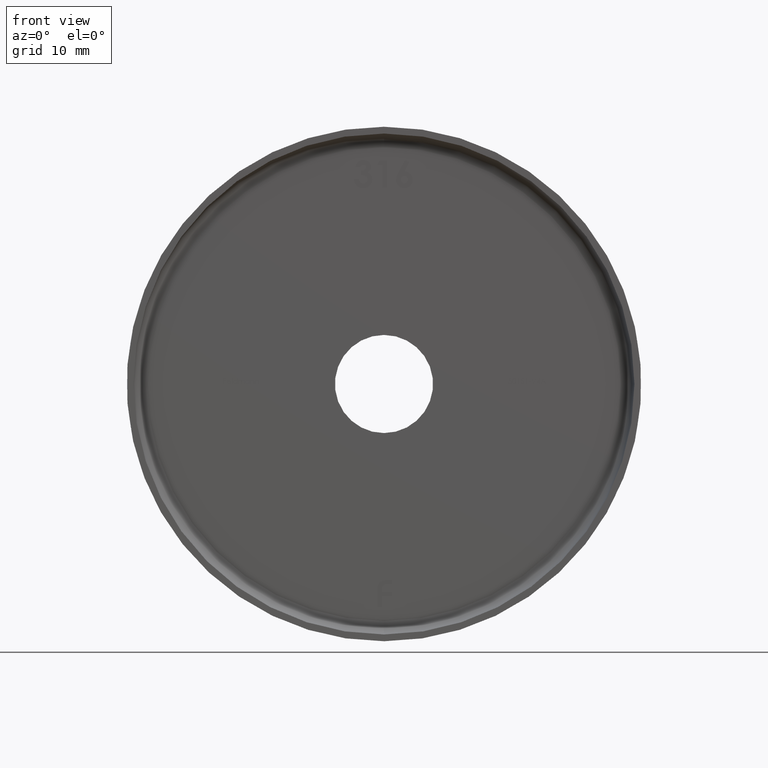
[diagram: clean part render]
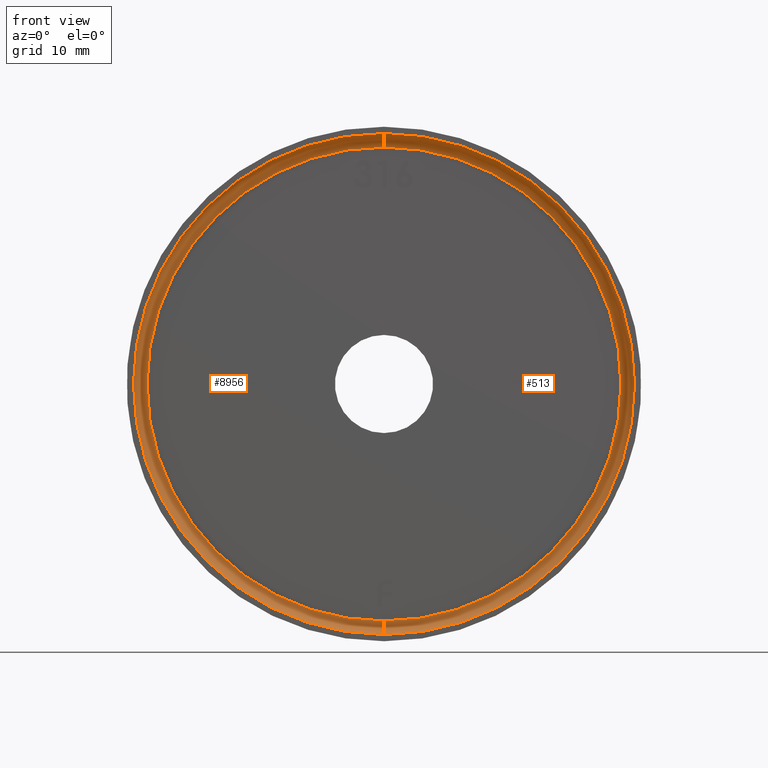
[diagram: same view with one multi-face feature highlighted, each face labeled with its STEP entity id]
A machine part, front view. The highlighted faces form ONE feature: a constant-radius fillet chain: 2 tangent blend faces with common blend radius 2 mm. The faces share edges in the B-rep.
Their STEP definitions:
[1] entity #513 (Torus):
#513 = ADVANCED_FACE ( 'NONE', ( #9842 ), #8202, .F. ) ;
#535 = AXIS2_PLACEMENT_3D ( 'NONE', #7032, #6118, #3935 ) ;
#764 = DIRECTION ( 'NONE',  ( -0.000000000000000000, -1.000000000000000000, -0.000000000000000000 ) ) ;
#1452 = CIRCLE ( 'NONE', #5672, 37.00000000000000711 ) ;
#1592 = CARTESIAN_POINT ( 'NONE',  ( 0.000000000000000000, 9.000000000000001776, -37.00000000000000711 ) ) ;
#1963 = AXIS2_PLACEMENT_3D ( 'NONE', #3065, #5190, #11353 ) ;
#1986 = EDGE_CURVE ( 'NONE', #5102, #10431, #5441, .T. ) ;
#2286 = ORIENTED_EDGE ( 'NONE', *, *, #4790, .F. ) ;
#3065 = CARTESIAN_POINT ( 'NONE',  ( 0.000000000000000000, 11.00000000000000178, 0.000000000000000000 ) ) ;
#3594 = VERTEX_POINT ( 'NONE', #9023 ) ;
#3935 = DIRECTION ( 'NONE',  ( 0.000000000000000000, 0.000000000000000000, 1.000000000000000000 ) ) ;
#4250 = ORIENTED_EDGE ( 'NONE', *, *, #10779, .T. ) ;
#4524 = AXIS2_PLACEMENT_3D ( 'NONE', #13513, #7199, #8295 ) ;
#4790 = EDGE_CURVE ( 'NONE', #3594, #5102, #8316, .T. ) ;
#5102 = VERTEX_POINT ( 'NONE', #12064 ) ;
#5190 = DIRECTION ( 'NONE',  ( -0.000000000000000000, -1.000000000000000000, -0.000000000000000000 ) ) ;
#5232 = DIRECTION ( 'NONE',  ( 1.000000000000000000, 0.000000000000000000, -1.224646799147353207E-16 ) ) ;
#5441 = CIRCLE ( 'NONE', #9849, 2.000000000000001776 ) ;
#5672 = AXIS2_PLACEMENT_3D ( 'NONE', #11222, #764, #12265 ) ;
#5836 = EDGE_LOOP ( 'NONE', ( #12804, #2286, #4250, #7564 ) ) ;
#5983 = EDGE_CURVE ( 'NONE', #6753, #10431, #1452, .T. ) ;
#6118 = DIRECTION ( 'NONE',  ( -1.000000000000000000, 0.000000000000000000, 0.000000000000000000 ) ) ;
#6353 = DIRECTION ( 'NONE',  ( -1.224646799147353454E-16, 0.000000000000000000, -1.000000000000000000 ) ) ;
#6753 = VERTEX_POINT ( 'NONE', #1592 ) ;
#7032 = CARTESIAN_POINT ( 'NONE',  ( 0.000000000000000000, 9.000000000000001776, -35.00000000000000000 ) ) ;
#7199 = DIRECTION ( 'NONE',  ( -0.000000000000000000, -1.000000000000000000, -0.000000000000000000 ) ) ;
#7564 = ORIENTED_EDGE ( 'NONE', *, *, #5983, .T. ) ;
#8202 = TOROIDAL_SURFACE ( 'NONE', #4524, 35.00000000000000000, 2.000000000000000000 ) ;
#8295 = DIRECTION ( 'NONE',  ( 0.000000000000000000, 0.000000000000000000, -1.000000000000000000 ) ) ;
#8316 = CIRCLE ( 'NONE', #1963, 35.00000000000000000 ) ;
#8906 = CARTESIAN_POINT ( 'NONE',  ( 4.531193156845207581E-15, 9.000000000000001776, 37.00000000000000711 ) ) ;
#9023 = CARTESIAN_POINT ( 'NONE',  ( 0.000000000000000000, 11.00000000000000178, -35.00000000000000000 ) ) ;
#9842 = FACE_OUTER_BOUND ( 'NONE', #5836, .T. ) ;
#9849 = AXIS2_PLACEMENT_3D ( 'NONE', #12518, #5232, #6353 ) ;
#10431 = VERTEX_POINT ( 'NONE', #8906 ) ;
#10779 = EDGE_CURVE ( 'NONE', #3594, #6753, #13309, .T. ) ;
#11222 = CARTESIAN_POINT ( 'NONE',  ( 0.000000000000000000, 9.000000000000001776, 0.000000000000000000 ) ) ;
#11353 = DIRECTION ( 'NONE',  ( 0.000000000000000000, 0.000000000000000000, -1.000000000000000000 ) ) ;
#12064 = CARTESIAN_POINT ( 'NONE',  ( 4.408728476930472433E-15, 11.00000000000000178, 35.00000000000000000 ) ) ;
#12265 = DIRECTION ( 'NONE',  ( 0.000000000000000000, 0.000000000000000000, -1.000000000000000000 ) ) ;
#12518 = CARTESIAN_POINT ( 'NONE',  ( 4.286263797015736496E-15, 9.000000000000001776, 35.00000000000000000 ) ) ;
#12804 = ORIENTED_EDGE ( 'NONE', *, *, #1986, .F. ) ;
#13309 = CIRCLE ( 'NONE', #535, 2.000000000000001776 ) ;
#13513 = CARTESIAN_POINT ( 'NONE',  ( 0.000000000000000000, 9.000000000000001776, 0.000000000000000000 ) ) ;
[2] entity #8956 (Torus):
#208 = DIRECTION ( 'NONE',  ( -0.000000000000000000, -1.000000000000000000, -0.000000000000000000 ) ) ;
#269 = DIRECTION ( 'NONE',  ( -0.000000000000000000, -1.000000000000000000, -0.000000000000000000 ) ) ;
#535 = AXIS2_PLACEMENT_3D ( 'NONE', #7032, #6118, #3935 ) ;
#552 = CIRCLE ( 'NONE', #13307, 35.00000000000000000 ) ;
#1278 = CARTESIAN_POINT ( 'NONE',  ( 0.000000000000000000, 9.000000000000001776, 0.000000000000000000 ) ) ;
#1592 = CARTESIAN_POINT ( 'NONE',  ( 0.000000000000000000, 9.000000000000001776, -37.00000000000000711 ) ) ;
#1986 = EDGE_CURVE ( 'NONE', #5102, #10431, #5441, .T. ) ;
#1991 = CARTESIAN_POINT ( 'NONE',  ( 0.000000000000000000, 9.000000000000001776, 0.000000000000000000 ) ) ;
#3066 = CIRCLE ( 'NONE', #9950, 37.00000000000000711 ) ;
#3196 = AXIS2_PLACEMENT_3D ( 'NONE', #1991, #12636, #11541 ) ;
#3334 = DIRECTION ( 'NONE',  ( 0.000000000000000000, 0.000000000000000000, -1.000000000000000000 ) ) ;
#3594 = VERTEX_POINT ( 'NONE', #9023 ) ;
#3935 = DIRECTION ( 'NONE',  ( 0.000000000000000000, 0.000000000000000000, 1.000000000000000000 ) ) ;
#5102 = VERTEX_POINT ( 'NONE', #12064 ) ;
#5144 = ORIENTED_EDGE ( 'NONE', *, *, #12736, .F. ) ;
#5232 = DIRECTION ( 'NONE',  ( 1.000000000000000000, 0.000000000000000000, -1.224646799147353207E-16 ) ) ;
#5441 = CIRCLE ( 'NONE', #9849, 2.000000000000001776 ) ;
#5891 = EDGE_CURVE ( 'NONE', #10431, #6753, #3066, .T. ) ;
#5968 = FACE_OUTER_BOUND ( 'NONE', #11052, .T. ) ;
#6118 = DIRECTION ( 'NONE',  ( -1.000000000000000000, 0.000000000000000000, 0.000000000000000000 ) ) ;
#6213 = ORIENTED_EDGE ( 'NONE', *, *, #1986, .T. ) ;
#6353 = DIRECTION ( 'NONE',  ( -1.224646799147353454E-16, 0.000000000000000000, -1.000000000000000000 ) ) ;
#6623 = ORIENTED_EDGE ( 'NONE', *, *, #10779, .F. ) ;
#6753 = VERTEX_POINT ( 'NONE', #1592 ) ;
#7032 = CARTESIAN_POINT ( 'NONE',  ( 0.000000000000000000, 9.000000000000001776, -35.00000000000000000 ) ) ;
#8906 = CARTESIAN_POINT ( 'NONE',  ( 4.531193156845207581E-15, 9.000000000000001776, 37.00000000000000711 ) ) ;
#8956 = ADVANCED_FACE ( 'NONE', ( #5968 ), #10056, .F. ) ;
#9023 = CARTESIAN_POINT ( 'NONE',  ( 0.000000000000000000, 11.00000000000000178, -35.00000000000000000 ) ) ;
#9849 = AXIS2_PLACEMENT_3D ( 'NONE', #12518, #5232, #6353 ) ;
#9950 = AXIS2_PLACEMENT_3D ( 'NONE', #1278, #269, #11714 ) ;
#10056 = TOROIDAL_SURFACE ( 'NONE', #3196, 35.00000000000000000, 2.000000000000000000 ) ;
#10431 = VERTEX_POINT ( 'NONE', #8906 ) ;
#10779 = EDGE_CURVE ( 'NONE', #3594, #6753, #13309, .T. ) ;
#11052 = EDGE_LOOP ( 'NONE', ( #5144, #6213, #11955, #6623 ) ) ;
#11541 = DIRECTION ( 'NONE',  ( 0.000000000000000000, 0.000000000000000000, -1.000000000000000000 ) ) ;
#11714 = DIRECTION ( 'NONE',  ( 0.000000000000000000, 0.000000000000000000, -1.000000000000000000 ) ) ;
#11955 = ORIENTED_EDGE ( 'NONE', *, *, #5891, .T. ) ;
#12064 = CARTESIAN_POINT ( 'NONE',  ( 4.408728476930472433E-15, 11.00000000000000178, 35.00000000000000000 ) ) ;
#12518 = CARTESIAN_POINT ( 'NONE',  ( 4.286263797015736496E-15, 9.000000000000001776, 35.00000000000000000 ) ) ;
#12606 = CARTESIAN_POINT ( 'NONE',  ( 0.000000000000000000, 11.00000000000000178, 0.000000000000000000 ) ) ;
#12636 = DIRECTION ( 'NONE',  ( -0.000000000000000000, -1.000000000000000000, -0.000000000000000000 ) ) ;
#12736 = EDGE_CURVE ( 'NONE', #5102, #3594, #552, .T. ) ;
#13307 = AXIS2_PLACEMENT_3D ( 'NONE', #12606, #208, #3334 ) ;
#13309 = CIRCLE ( 'NONE', #535, 2.000000000000001776 ) ;